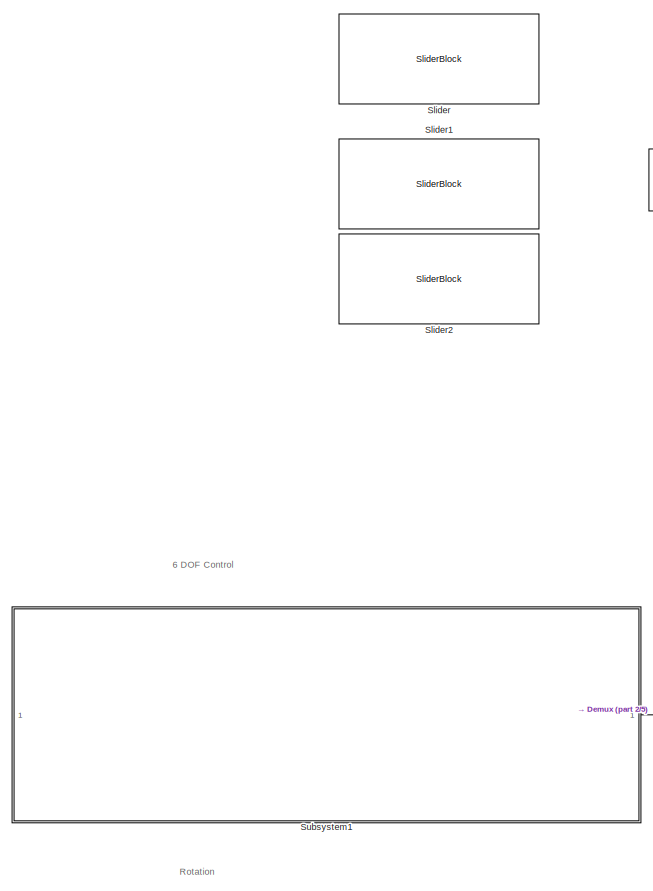
[diagram: root canvas - part 1/5, top center region]
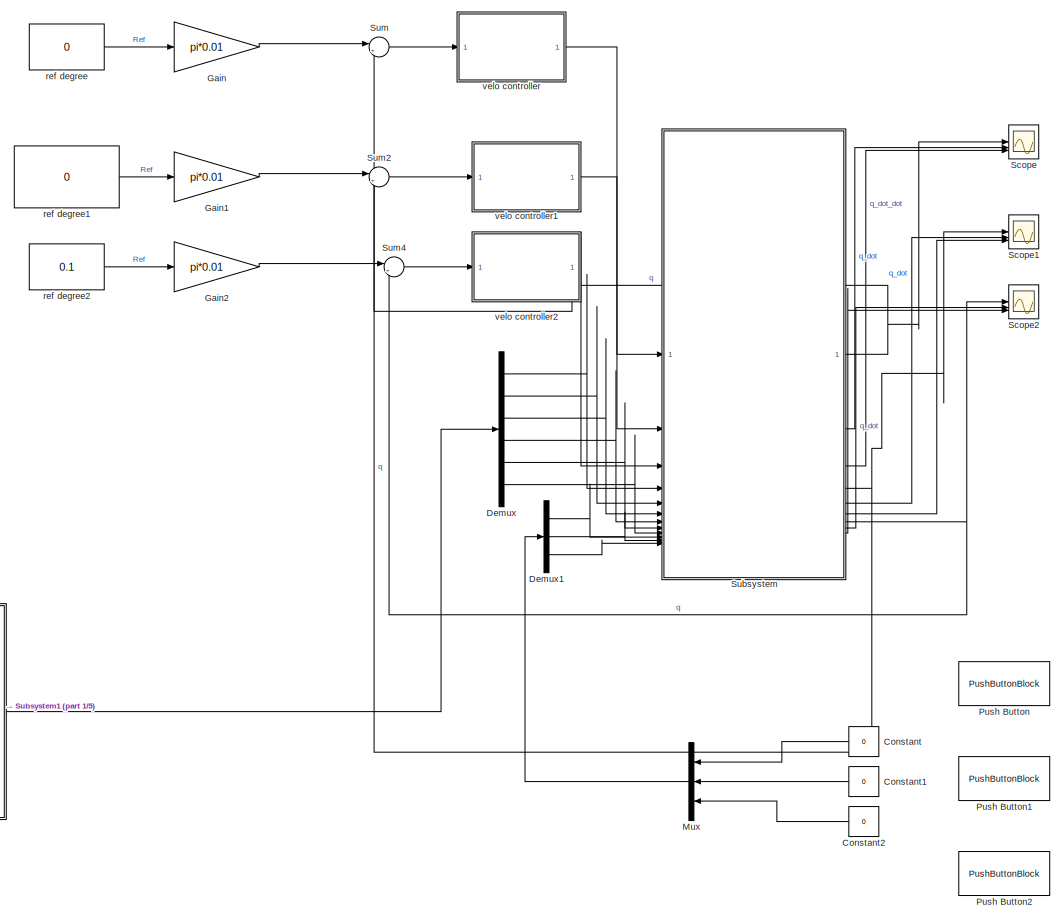
[diagram: root canvas - part 2/5, top right region]
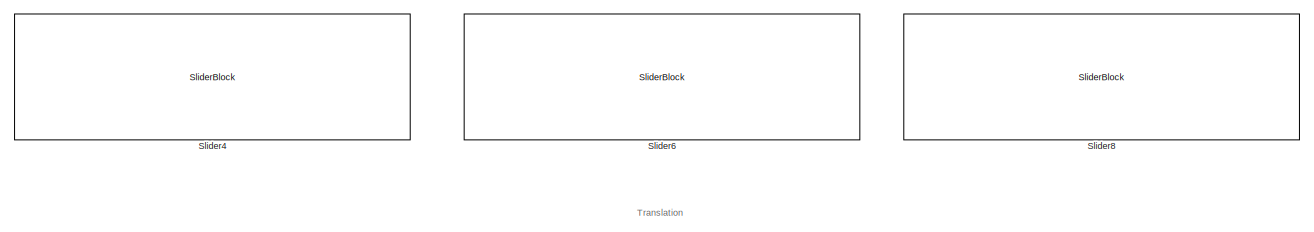
[diagram: root canvas - part 3/5, bottom center region]
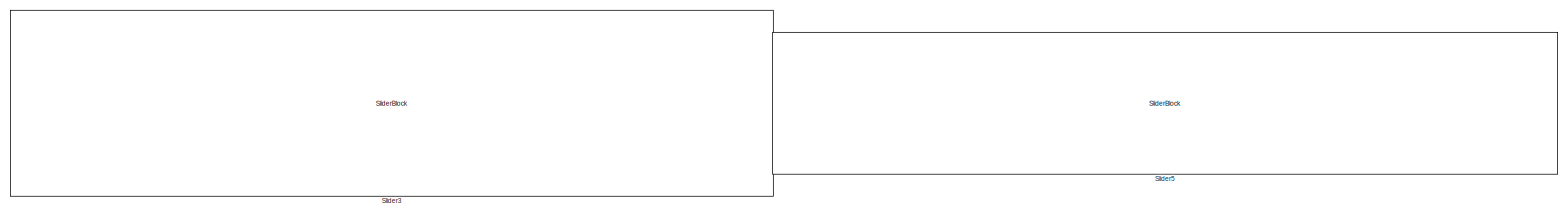
[diagram: root canvas - part 4/5, bottom left region]
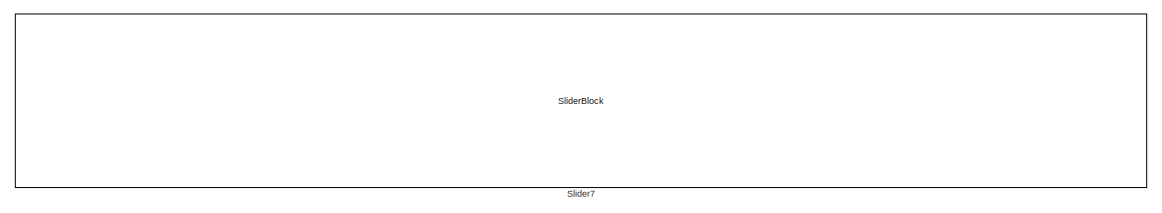
[diagram: root canvas - part 5/5, bottom right region]
MODEL slx_042c8a265674
KIND model
CONFIG AbsTol = auto
CONFIG EnableMultiTasking = off
CONFIG FixedStep = auto
CONFIG MaxStep = auto
CONFIG MinStep = auto
CONFIG RelTol = 1e-3
CONFIG SampleTimeConstraint = Unconstrained
CONFIG SolverName = VariableStepAuto
CONFIG StartTime = 0.0
CONFIG StopTime = inf
BLOCK [Constant] Constant
  NameLocation = top
  Value = 0
BLOCK [Constant] Constant1
  NameLocation = top
  Value = 0
BLOCK [Constant] Constant2
  NameLocation = top
  Value = 0
BLOCK [Demux] Demux
  Outputs = 6
BLOCK [Demux] Demux1
  Outputs = 3
BLOCK [Gain] Gain
  Gain = pi*0.01
BLOCK [Gain] Gain1
  Gain = pi*0.01
BLOCK [Gain] Gain2
  Gain = pi*0.01
BLOCK [Mux] Mux
  DisplayOption = bar
  Inputs = 3
  NameLocation = top
BLOCK [PushButtonBlock] Push Button
  OffValue = 0.000000
  OnValue = 10
BLOCK [PushButtonBlock] Push Button1
  OffValue = 0.000000
  OnValue = 10
BLOCK [PushButtonBlock] Push Button2
  OffValue = 0.000000
  OnValue = 10
BLOCK [Scope] Scope
  Floating = off
  NumInputPorts = 3
  ScopeSpecificationString = Simulink.scopes.TimeScopeBlockCfg('CurrentConfiguration', extmgr.ConfigurationSet(extmgr.Configuration('Core','General UI',true),extmgr.Configuration('Core','Source UI',true),extmgr.Configuration('Sources','WiredSimulink',true),extmgr.Configuration('Visuals','Time Domain',true,'SerializedDisplays',{struct('MinYLimReal','-0.86068','MaxYLimReal','0.10735','YLabelReal','','MinYLimMag','0.00000','MaxY...<+1530ch>
BLOCK [Scope] Scope1
  Floating = off
  NumInputPorts = 3
  ScopeSpecificationString = Simulink.scopes.TimeScopeBlockCfg('CurrentConfiguration', extmgr.ConfigurationSet(extmgr.Configuration('Core','General UI',true),extmgr.Configuration('Core','Source UI',true),extmgr.Configuration('Sources','WiredSimulink',true,'DataLoggingVariableName','ScopeData1'),extmgr.Configuration('Visuals','Time Domain',true,'SerializedDisplays',{struct('MinYLimReal','-29580.86741','MaxYLimReal','265861.364...<+1414ch>
BLOCK [Scope] Scope2
  Floating = off
  NumInputPorts = 3
  ScopeSpecificationString = Simulink.scopes.TimeScopeBlockCfg('CurrentConfiguration', extmgr.ConfigurationSet(extmgr.Configuration('Core','General UI',true),extmgr.Configuration('Core','Source UI',true),extmgr.Configuration('Sources','WiredSimulink',true,'DataLoggingVariableName','ScopeData2'),extmgr.Configuration('Visuals','Time Domain',true,'SerializedDisplays',{struct('MinYLimReal','-29580.86741','MaxYLimReal','265861.364...<+1414ch>
BLOCK [SliderBlock] Slider
  TickInterval = 10
BLOCK [SliderBlock] Slider1
  TickInterval = 10
BLOCK [SliderBlock] Slider2
  ScaleMin = .1
  TickInterval = 10
BLOCK [SliderBlock] Slider3
  ScaleMax = 1
  ScaleMin = -1
  TickInterval = 0.1
BLOCK [SliderBlock] Slider4
  ScaleMin = -100
  TickInterval = 10
BLOCK [SliderBlock] Slider5
  ScaleMax = 1
  ScaleMin = -1
  TickInterval = 0.1
BLOCK [SliderBlock] Slider6
  ScaleMin = -100
  TickInterval = 10
BLOCK [SliderBlock] Slider7
  ScaleMax = 1
  ScaleMin = -1
  TickInterval = 0.1
BLOCK [SliderBlock] Slider8
  ScaleMin = -100
  TickInterval = 10
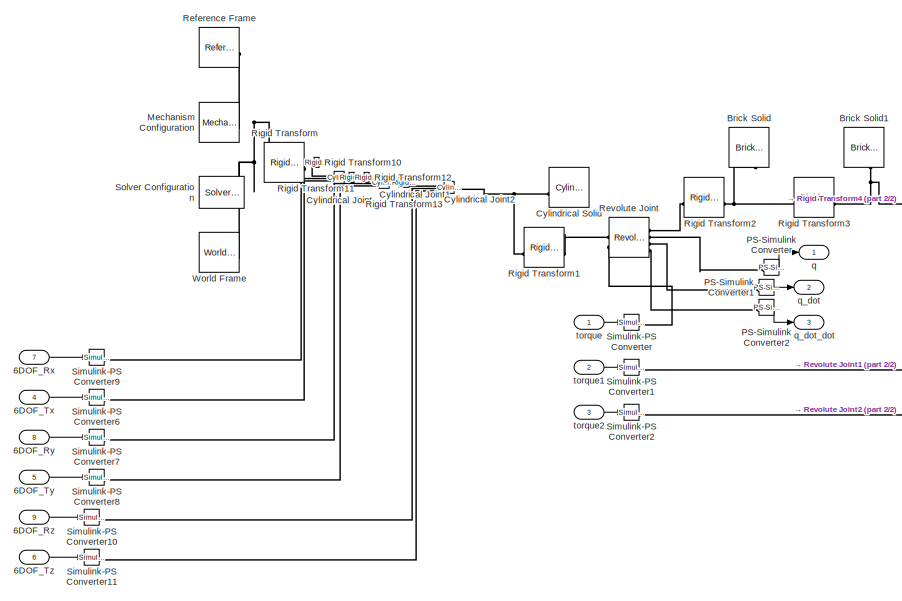
[diagram: Subsystem - part 1/2, left side, full height]
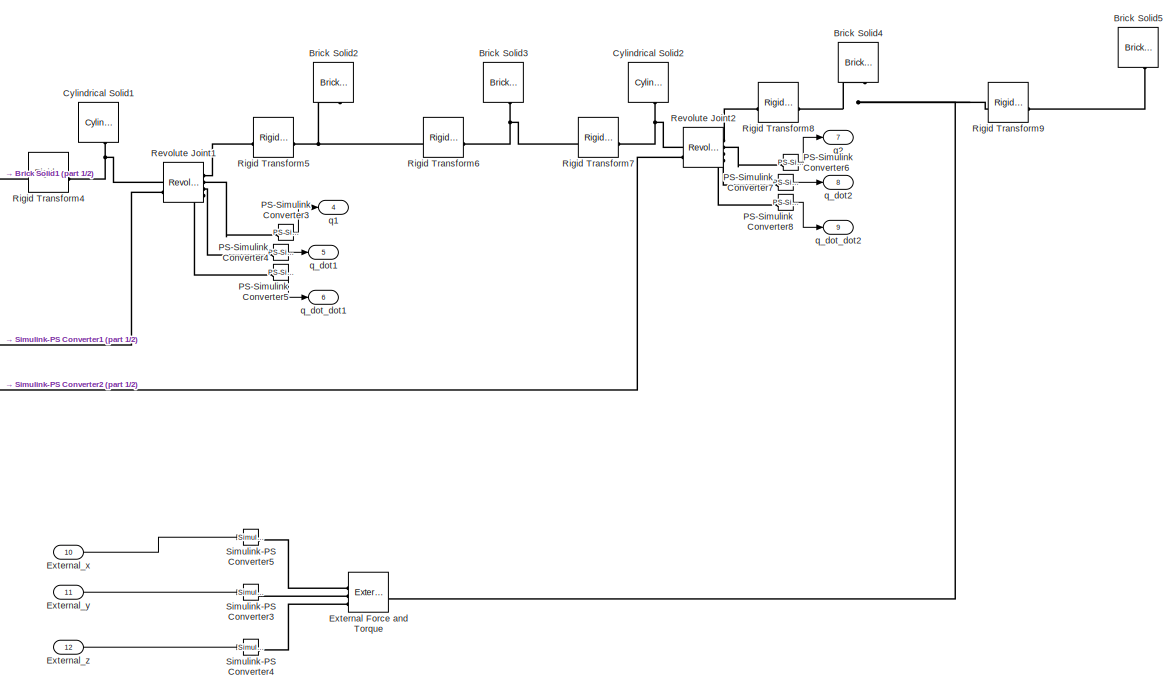
[diagram: Subsystem - part 2/2, right side, full height]
BLOCK [SubSystem] Subsystem
BLOCK [Inport] Subsystem/6DOF_Rx
  Port = 7
BLOCK [Inport] Subsystem/6DOF_Ry
  Port = 8
BLOCK [Inport] Subsystem/6DOF_Rz
  Port = 9
BLOCK [Inport] Subsystem/6DOF_Tx
  Port = 4
BLOCK [Inport] Subsystem/6DOF_Ty
  Port = 5
BLOCK [Inport] Subsystem/6DOF_Tz
  Port = 6
BLOCK [Reference] Subsystem/Brick Solid  REF=sm_lib/Body Elements/Brick Solid
  NameLocation = left
  SourceBlock = sm_lib/Body Elements/Brick Solid
  SourceType = Brick Solid
BLOCK [Reference] Subsystem/Brick Solid1  REF=sm_lib/Body Elements/Brick Solid
  NameLocation = left
  SourceBlock = sm_lib/Body Elements/Brick Solid
  SourceType = Brick Solid
BLOCK [Reference] Subsystem/Brick Solid2  REF=sm_lib/Body Elements/Brick Solid
  NameLocation = left
  SourceBlock = sm_lib/Body Elements/Brick Solid
  SourceType = Brick Solid
BLOCK [Reference] Subsystem/Brick Solid3  REF=sm_lib/Body Elements/Brick Solid
  NameLocation = left
  SourceBlock = sm_lib/Body Elements/Brick Solid
  SourceType = Brick Solid
BLOCK [Reference] Subsystem/Brick Solid4  REF=sm_lib/Body Elements/Brick Solid
  NameLocation = left
  SourceBlock = sm_lib/Body Elements/Brick Solid
  SourceType = Brick Solid
BLOCK [Reference] Subsystem/Brick Solid5  REF=sm_lib/Body Elements/Brick Solid
  NameLocation = left
  SourceBlock = sm_lib/Body Elements/Brick Solid
  SourceType = Brick Solid
BLOCK [Reference] Subsystem/Cylindrical Joint  REF=sm_lib/Joints/Cylindrical
Joint
  SourceBlock = sm_lib/Joints/Cylindrical\nJoint
  SourceType = Cylindrical\nJoint
BLOCK [Reference] Subsystem/Cylindrical Joint1  REF=sm_lib/Joints/Cylindrical
Joint
  NameLocation = right
  SourceBlock = sm_lib/Joints/Cylindrical\nJoint
  SourceType = Cylindrical\nJoint
BLOCK [Reference] Subsystem/Cylindrical Joint2  REF=sm_lib/Joints/Cylindrical
Joint
  NameLocation = right
  SourceBlock = sm_lib/Joints/Cylindrical\nJoint
  SourceType = Cylindrical\nJoint
BLOCK [Reference] Subsystem/Cylindrical Solid  REF=sm_lib/Body Elements/Cylindrical Solid
  NameLocation = top
  SourceBlock = sm_lib/Body Elements/Cylindrical Solid
  SourceType = Cylindrical Solid
BLOCK [Reference] Subsystem/Cylindrical Solid1  REF=sm_lib/Body Elements/Cylindrical Solid
  NameLocation = left
  SourceBlock = sm_lib/Body Elements/Cylindrical Solid
  SourceType = Cylindrical Solid
BLOCK [Reference] Subsystem/Cylindrical Solid2  REF=sm_lib/Body Elements/Cylindrical Solid
  NameLocation = left
  SourceBlock = sm_lib/Body Elements/Cylindrical Solid
  SourceType = Cylindrical Solid
BLOCK [Reference] Subsystem/External Force and Torque  REF=sm_lib/Forces and
Torques/External Force
and Torque
  SourceBlock = sm_lib/Forces and\nTorques/External Force\nand Torque
  SourceType = External Force\nand Torque
BLOCK [Inport] Subsystem/External_x
  Port = 10
BLOCK [Inport] Subsystem/External_y
  Port = 11
BLOCK [Inport] Subsystem/External_z
  Port = 12
BLOCK [Reference] Subsystem/Mechanism Configuration  REF=sm_lib/Utilities/Mechanism
Configuration
  SourceBlock = sm_lib/Utilities/Mechanism\nConfiguration
  SourceType = Mechanism\nConfiguration
BLOCK [Reference] Subsystem/PS-Simulink Converter  REF=nesl_utility/PS-Simulink
Converter
  SourceBlock = nesl_utility/PS-Simulink\nConverter
  SourceType = PS-Simulink\nConverter
BLOCK [Reference] Subsystem/PS-Simulink Converter1  REF=nesl_utility/PS-Simulink
Converter
  SourceBlock = nesl_utility/PS-Simulink\nConverter
  SourceType = PS-Simulink\nConverter
BLOCK [Reference] Subsystem/PS-Simulink Converter2  REF=nesl_utility/PS-Simulink
Converter
  SourceBlock = nesl_utility/PS-Simulink\nConverter
  SourceType = PS-Simulink\nConverter
BLOCK [Reference] Subsystem/PS-Simulink Converter3  REF=nesl_utility/PS-Simulink
Converter
  SourceBlock = nesl_utility/PS-Simulink\nConverter
  SourceType = PS-Simulink\nConverter
BLOCK [Reference] Subsystem/PS-Simulink Converter4  REF=nesl_utility/PS-Simulink
Converter
  SourceBlock = nesl_utility/PS-Simulink\nConverter
  SourceType = PS-Simulink\nConverter
BLOCK [Reference] Subsystem/PS-Simulink Converter5  REF=nesl_utility/PS-Simulink
Converter
  SourceBlock = nesl_utility/PS-Simulink\nConverter
  SourceType = PS-Simulink\nConverter
BLOCK [Reference] Subsystem/PS-Simulink Converter6  REF=nesl_utility/PS-Simulink
Converter
  SourceBlock = nesl_utility/PS-Simulink\nConverter
  SourceType = PS-Simulink\nConverter
BLOCK [Reference] Subsystem/PS-Simulink Converter7  REF=nesl_utility/PS-Simulink
Converter
  SourceBlock = nesl_utility/PS-Simulink\nConverter
  SourceType = PS-Simulink\nConverter
BLOCK [Reference] Subsystem/PS-Simulink Converter8  REF=nesl_utility/PS-Simulink
Converter
  SourceBlock = nesl_utility/PS-Simulink\nConverter
  SourceType = PS-Simulink\nConverter
BLOCK [Reference] Subsystem/Reference Frame  REF=sm_lib/Frames and
Transforms/Reference
Frame
  SourceBlock = sm_lib/Frames and\nTransforms/Reference\nFrame
  SourceType = Reference\nFrame
BLOCK [Reference] Subsystem/Revolute Joint  REF=sm_lib/Joints/Revolute Joint
  SourceBlock = sm_lib/Joints/Revolute Joint
  SourceType = Revolute Joint
BLOCK [Reference] Subsystem/Revolute Joint1  REF=sm_lib/Joints/Revolute Joint
  SourceBlock = sm_lib/Joints/Revolute Joint
  SourceType = Revolute Joint
BLOCK [Reference] Subsystem/Revolute Joint2  REF=sm_lib/Joints/Revolute Joint
  SourceBlock = sm_lib/Joints/Revolute Joint
  SourceType = Revolute Joint
BLOCK [Reference] Subsystem/Rigid Transform  REF=sm_lib/Frames and
Transforms/Rigid
Transform
  SourceBlock = sm_lib/Frames and\nTransforms/Rigid\nTransform
  SourceType = Rigid\nTransform
BLOCK [Reference] Subsystem/Rigid Transform1  REF=sm_lib/Frames and
Transforms/Rigid
Transform
  SourceBlock = sm_lib/Frames and\nTransforms/Rigid\nTransform
  SourceType = Rigid\nTransform
BLOCK [Reference] Subsystem/Rigid Transform10  REF=sm_lib/Frames and
Transforms/Rigid
Transform
  SourceBlock = sm_lib/Frames and\nTransforms/Rigid\nTransform
  SourceType = Rigid\nTransform
BLOCK [Reference] Subsystem/Rigid Transform11  REF=sm_lib/Frames and
Transforms/Rigid
Transform
  NameLocation = right
  SourceBlock = sm_lib/Frames and\nTransforms/Rigid\nTransform
  SourceType = Rigid\nTransform
BLOCK [Reference] Subsystem/Rigid Transform12  REF=sm_lib/Frames and
Transforms/Rigid
Transform
  SourceBlock = sm_lib/Frames and\nTransforms/Rigid\nTransform
  SourceType = Rigid\nTransform
BLOCK [Reference] Subsystem/Rigid Transform13  REF=sm_lib/Frames and
Transforms/Rigid
Transform
  NameLocation = right
  SourceBlock = sm_lib/Frames and\nTransforms/Rigid\nTransform
  SourceType = Rigid\nTransform
BLOCK [Reference] Subsystem/Rigid Transform2  REF=sm_lib/Frames and
Transforms/Rigid
Transform
  SourceBlock = sm_lib/Frames and\nTransforms/Rigid\nTransform
  SourceType = Rigid\nTransform
BLOCK [Reference] Subsystem/Rigid Transform3  REF=sm_lib/Frames and
Transforms/Rigid
Transform
  SourceBlock = sm_lib/Frames and\nTransforms/Rigid\nTransform
  SourceType = Rigid\nTransform
BLOCK [Reference] Subsystem/Rigid Transform4  REF=sm_lib/Frames and
Transforms/Rigid
Transform
  SourceBlock = sm_lib/Frames and\nTransforms/Rigid\nTransform
  SourceType = Rigid\nTransform
BLOCK [Reference] Subsystem/Rigid Transform5  REF=sm_lib/Frames and
Transforms/Rigid
Transform
  SourceBlock = sm_lib/Frames and\nTransforms/Rigid\nTransform
  SourceType = Rigid\nTransform
BLOCK [Reference] Subsystem/Rigid Transform6  REF=sm_lib/Frames and
Transforms/Rigid
Transform
  SourceBlock = sm_lib/Frames and\nTransforms/Rigid\nTransform
  SourceType = Rigid\nTransform
BLOCK [Reference] Subsystem/Rigid Transform7  REF=sm_lib/Frames and
Transforms/Rigid
Transform
  SourceBlock = sm_lib/Frames and\nTransforms/Rigid\nTransform
  SourceType = Rigid\nTransform
BLOCK [Reference] Subsystem/Rigid Transform8  REF=sm_lib/Frames and
Transforms/Rigid
Transform
  SourceBlock = sm_lib/Frames and\nTransforms/Rigid\nTransform
  SourceType = Rigid\nTransform
BLOCK [Reference] Subsystem/Rigid Transform9  REF=sm_lib/Frames and
Transforms/Rigid
Transform
  SourceBlock = sm_lib/Frames and\nTransforms/Rigid\nTransform
  SourceType = Rigid\nTransform
BLOCK [Reference] Subsystem/Simulink-PS Converter  REF=nesl_utility/Simulink-PS
Converter
  SourceBlock = nesl_utility/Simulink-PS\nConverter
  SourceType = Simulink-PS\nConverter
BLOCK [Reference] Subsystem/Simulink-PS Converter1  REF=nesl_utility/Simulink-PS
Converter
  SourceBlock = nesl_utility/Simulink-PS\nConverter
  SourceType = Simulink-PS\nConverter
BLOCK [Reference] Subsystem/Simulink-PS Converter10  REF=nesl_utility/Simulink-PS
Converter
  SourceBlock = nesl_utility/Simulink-PS\nConverter
  SourceType = Simulink-PS\nConverter
BLOCK [Reference] Subsystem/Simulink-PS Converter11  REF=nesl_utility/Simulink-PS
Converter
  SourceBlock = nesl_utility/Simulink-PS\nConverter
  SourceType = Simulink-PS\nConverter
BLOCK [Reference] Subsystem/Simulink-PS Converter2  REF=nesl_utility/Simulink-PS
Converter
  SourceBlock = nesl_utility/Simulink-PS\nConverter
  SourceType = Simulink-PS\nConverter
BLOCK [Reference] Subsystem/Simulink-PS Converter3  REF=nesl_utility/Simulink-PS
Converter
  SourceBlock = nesl_utility/Simulink-PS\nConverter
  SourceType = Simulink-PS\nConverter
BLOCK [Reference] Subsystem/Simulink-PS Converter4  REF=nesl_utility/Simulink-PS
Converter
  SourceBlock = nesl_utility/Simulink-PS\nConverter
  SourceType = Simulink-PS\nConverter
BLOCK [Reference] Subsystem/Simulink-PS Converter5  REF=nesl_utility/Simulink-PS
Converter
  SourceBlock = nesl_utility/Simulink-PS\nConverter
  SourceType = Simulink-PS\nConverter
BLOCK [Reference] Subsystem/Simulink-PS Converter6  REF=nesl_utility/Simulink-PS
Converter
  SourceBlock = nesl_utility/Simulink-PS\nConverter
  SourceType = Simulink-PS\nConverter
BLOCK [Reference] Subsystem/Simulink-PS Converter7  REF=nesl_utility/Simulink-PS
Converter
  SourceBlock = nesl_utility/Simulink-PS\nConverter
  SourceType = Simulink-PS\nConverter
BLOCK [Reference] Subsystem/Simulink-PS Converter8  REF=nesl_utility/Simulink-PS
Converter
  SourceBlock = nesl_utility/Simulink-PS\nConverter
  SourceType = Simulink-PS\nConverter
BLOCK [Reference] Subsystem/Simulink-PS Converter9  REF=nesl_utility/Simulink-PS
Converter
  SourceBlock = nesl_utility/Simulink-PS\nConverter
  SourceType = Simulink-PS\nConverter
BLOCK [Reference] Subsystem/Solver Configuration  REF=nesl_utility/Solver
Configuration
  SourceBlock = nesl_utility/Solver\nConfiguration
  SourceType = Solver\nConfiguration
BLOCK [Reference] Subsystem/World Frame  REF=sm_lib/Frames and
Transforms/World Frame
  SourceBlock = sm_lib/Frames and\nTransforms/World Frame
  SourceType = World Frame
BLOCK [Outport] Subsystem/q
BLOCK [Outport] Subsystem/q1
  Port = 4
BLOCK [Outport] Subsystem/q2
  Port = 7
BLOCK [Outport] Subsystem/q_dot
  Port = 2
BLOCK [Outport] Subsystem/q_dot1
  Port = 5
BLOCK [Outport] Subsystem/q_dot2
  Port = 8
BLOCK [Outport] Subsystem/q_dot_dot
  Port = 3
BLOCK [Outport] Subsystem/q_dot_dot1
  Port = 6
BLOCK [Outport] Subsystem/q_dot_dot2
  Port = 9
BLOCK [Inport] Subsystem/torque
BLOCK [Inport] Subsystem/torque1
  Port = 2
BLOCK [Inport] Subsystem/torque2
  Port = 3
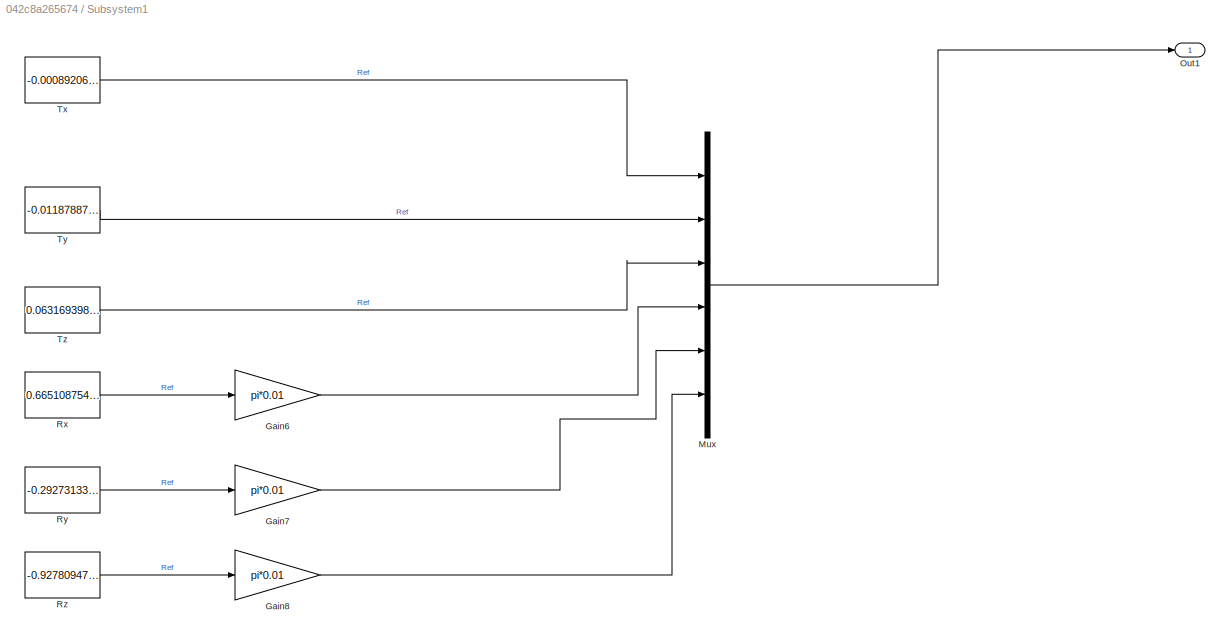
BLOCK [SubSystem] Subsystem1
BLOCK [Gain] Subsystem1/Gain6
  Gain = pi*0.01
BLOCK [Gain] Subsystem1/Gain7
  Gain = pi*0.01
BLOCK [Gain] Subsystem1/Gain8
  Gain = pi*0.01
BLOCK [Mux] Subsystem1/Mux
  DisplayOption = bar
  Inputs = 6
BLOCK [Outport] Subsystem1/Out1
BLOCK [Constant] Subsystem1/Rx
  OutDataTypeStr = double
  Value = 0.6651087542692835
BLOCK [Constant] Subsystem1/Ry
  OutDataTypeStr = double
  Value = -0.2927313321756486
BLOCK [Constant] Subsystem1/Rz
  OutDataTypeStr = double
  Value = -0.9278094765566891
BLOCK [Constant] Subsystem1/Tx
  OutDataTypeStr = double
  Value = -0.000892060660124927
BLOCK [Constant] Subsystem1/Ty
  OutDataTypeStr = double
  Value = -0.01187887954122946
BLOCK [Constant] Subsystem1/Tz
  OutDataTypeStr = double
  Value = 0.06316939890710382
BLOCK [Sum] Sum
  Inputs = |+-
BLOCK [Sum] Sum2
  Inputs = |+-
BLOCK [Sum] Sum4
  Inputs = |+-
BLOCK [Constant] ref degree
  OutDataTypeStr = int32
  Value = 0
BLOCK [Constant] ref degree1
  OutDataTypeStr = int32
  Value = 0
BLOCK [Constant] ref degree2
  OutDataTypeStr = int32
  Value = 0.1
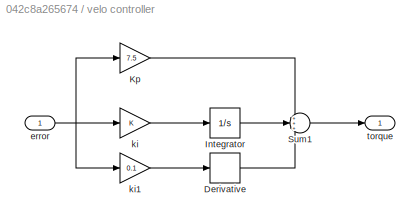
BLOCK [SubSystem] velo controller
BLOCK [Derivative] velo controller/Derivative
BLOCK [Integrator] velo controller/Integrator
BLOCK [Gain] velo controller/Kp
  Gain = 7.5
BLOCK [Sum] velo controller/Sum1
  Inputs = +++
BLOCK [Inport] velo controller/error
BLOCK [Gain] velo controller/ki
BLOCK [Gain] velo controller/ki1
  Gain = 0.1
BLOCK [Outport] velo controller/torque
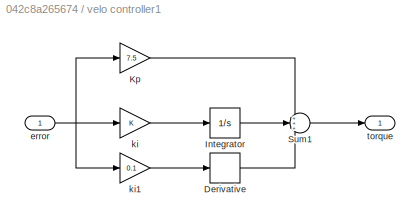
BLOCK [SubSystem] velo controller1
BLOCK [Derivative] velo controller1/Derivative
BLOCK [Integrator] velo controller1/Integrator
BLOCK [Gain] velo controller1/Kp
  Gain = 7.5
BLOCK [Sum] velo controller1/Sum1
  Inputs = +++
BLOCK [Inport] velo controller1/error
BLOCK [Gain] velo controller1/ki
BLOCK [Gain] velo controller1/ki1
  Gain = 0.1
BLOCK [Outport] velo controller1/torque
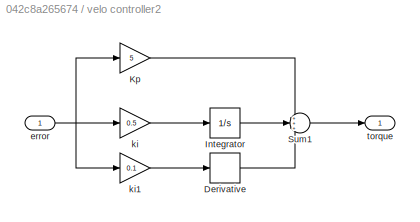
BLOCK [SubSystem] velo controller2
BLOCK [Derivative] velo controller2/Derivative
BLOCK [Integrator] velo controller2/Integrator
BLOCK [Gain] velo controller2/Kp
  Gain = 5
BLOCK [Sum] velo controller2/Sum1
  Inputs = +++
BLOCK [Inport] velo controller2/error
BLOCK [Gain] velo controller2/ki
  Gain = 0.5
BLOCK [Gain] velo controller2/ki1
  Gain = 0.1
BLOCK [Outport] velo controller2/torque
ANNOTATION (root): 6 DOF Control
ANNOTATION (root): Rotation
ANNOTATION (root): Translation
LINE Constant1:1 -> Mux:2
LINE Constant2:1 -> Mux:3
LINE Constant:1 -> Mux:1
LINE Demux1:1 -> Subsystem:10
LINE Demux1:2 -> Subsystem:11
LINE Demux1:3 -> Subsystem:12
LINE Demux:1 -> Subsystem:4
LINE Demux:2 -> Subsystem:5
LINE Demux:3 -> Subsystem:6
LINE Demux:4 -> Subsystem:7
LINE Demux:5 -> Subsystem:8
LINE Demux:6 -> Subsystem:9
LINE Gain1:1 -> Sum2:1
LINE Gain2:1 -> Sum4:1
LINE Gain:1 -> Sum:1
LINE Mux:1 -> Demux1:1
LINE Subsystem/6DOF_Rx:1 -> Subsystem/Simulink-PS Converter9:1
LINE Subsystem/6DOF_Ry:1 -> Subsystem/Simulink-PS Converter7:1
LINE Subsystem/6DOF_Rz:1 -> Subsystem/Simulink-PS Converter10:1
LINE Subsystem/6DOF_Tx:1 -> Subsystem/Simulink-PS Converter6:1
LINE Subsystem/6DOF_Ty:1 -> Subsystem/Simulink-PS Converter8:1
LINE Subsystem/6DOF_Tz:1 -> Subsystem/Simulink-PS Converter11:1
LINE Subsystem/External_x:1 -> Subsystem/Simulink-PS Converter5:1
LINE Subsystem/External_y:1 -> Subsystem/Simulink-PS Converter3:1
LINE Subsystem/External_z:1 -> Subsystem/Simulink-PS Converter4:1
LINE Subsystem/PS-Simulink Converter1:1 -> Subsystem/q_dot:1
LINE Subsystem/PS-Simulink Converter2:1 -> Subsystem/q_dot_dot:1
LINE Subsystem/PS-Simulink Converter3:1 -> Subsystem/q1:1
LINE Subsystem/PS-Simulink Converter4:1 -> Subsystem/q_dot1:1
LINE Subsystem/PS-Simulink Converter5:1 -> Subsystem/q_dot_dot1:1
LINE Subsystem/PS-Simulink Converter6:1 -> Subsystem/q2:1
LINE Subsystem/PS-Simulink Converter7:1 -> Subsystem/q_dot2:1
LINE Subsystem/PS-Simulink Converter8:1 -> Subsystem/q_dot_dot2:1
LINE Subsystem/PS-Simulink Converter:1 -> Subsystem/q:1
LINE Subsystem/torque1:1 -> Subsystem/Simulink-PS Converter1:1
LINE Subsystem/torque2:1 -> Subsystem/Simulink-PS Converter2:1
LINE Subsystem/torque:1 -> Subsystem/Simulink-PS Converter:1
LINE Subsystem1/Gain6:1 -> Subsystem1/Mux:4
LINE Subsystem1/Gain7:1 -> Subsystem1/Mux:5
LINE Subsystem1/Gain8:1 -> Subsystem1/Mux:6
LINE Subsystem1/Mux:1 -> Subsystem1/Out1:1
LINE Subsystem1/Rx:1 -> Subsystem1/Gain6:1
LINE Subsystem1/Ry:1 -> Subsystem1/Gain7:1
LINE Subsystem1/Rz:1 -> Subsystem1/Gain8:1
LINE Subsystem1/Tx:1 -> Subsystem1/Mux:1
LINE Subsystem1/Ty:1 -> Subsystem1/Mux:2
LINE Subsystem1/Tz:1 -> Subsystem1/Mux:3
LINE Subsystem1:1 -> Demux:1
NET Subsystem:1 -> Scope:1, Sum:2
LINE Subsystem:2 -> Scope:2
LINE Subsystem:3 -> Scope:3
NET Subsystem:4 -> Scope1:1, Sum2:2
LINE Subsystem:5 -> Scope1:2
LINE Subsystem:6 -> Scope1:3
NET Subsystem:7 -> Scope2:1, Sum4:2
LINE Subsystem:8 -> Scope2:2
LINE Subsystem:9 -> Scope2:3
LINE Sum2:1 -> velo controller1:1
LINE Sum4:1 -> velo controller2:1
LINE Sum:1 -> velo controller:1
LINE ref degree1:1 -> Gain1:1
LINE ref degree2:1 -> Gain2:1
LINE ref degree:1 -> Gain:1
LINE velo controller/Derivative:1 -> velo controller/Sum1:3
LINE velo controller/Integrator:1 -> velo controller/Sum1:2
LINE velo controller/Kp:1 -> velo controller/Sum1:1
LINE velo controller/Sum1:1 -> velo controller/torque:1
NET velo controller/error:1 -> velo controller/Kp:1, velo controller/ki1:1, velo controller/ki:1
LINE velo controller/ki1:1 -> velo controller/Derivative:1
LINE velo controller/ki:1 -> velo controller/Integrator:1
LINE velo controller1/Derivative:1 -> velo controller1/Sum1:3
LINE velo controller1/Integrator:1 -> velo controller1/Sum1:2
LINE velo controller1/Kp:1 -> velo controller1/Sum1:1
LINE velo controller1/Sum1:1 -> velo controller1/torque:1
NET velo controller1/error:1 -> velo controller1/Kp:1, velo controller1/ki1:1, velo controller1/ki:1
LINE velo controller1/ki1:1 -> velo controller1/Derivative:1
LINE velo controller1/ki:1 -> velo controller1/Integrator:1
LINE velo controller1:1 -> Subsystem:2
LINE velo controller2/Derivative:1 -> velo controller2/Sum1:3
LINE velo controller2/Integrator:1 -> velo controller2/Sum1:2
LINE velo controller2/Kp:1 -> velo controller2/Sum1:1
LINE velo controller2/Sum1:1 -> velo controller2/torque:1
NET velo controller2/error:1 -> velo controller2/Kp:1, velo controller2/ki1:1, velo controller2/ki:1
LINE velo controller2/ki1:1 -> velo controller2/Derivative:1
LINE velo controller2/ki:1 -> velo controller2/Integrator:1
LINE velo controller2:1 -> Subsystem:3
LINE velo controller:1 -> Subsystem:1
PNET net1: Subsystem/Brick Solid1:RConn1 -- Subsystem/Rigid Transform3:RConn1 -- Subsystem/Rigid Transform4:LConn1
PNET net2: Subsystem/Brick Solid2:RConn1 -- Subsystem/Rigid Transform5:RConn1 -- Subsystem/Rigid Transform6:LConn1
PNET net3: Subsystem/Brick Solid3:RConn1 -- Subsystem/Rigid Transform6:RConn1 -- Subsystem/Rigid Transform7:LConn1
PNET net4: Subsystem/Brick Solid4:RConn1 -- Subsystem/External Force and Torque:RConn1 -- Subsystem/Rigid Transform8:RConn1 -- Subsystem/Rigid Transform9:LConn1
PLINE Subsystem/Brick Solid5:RConn1 -- Subsystem/Rigid Transform9:RConn1
PNET net5: Subsystem/Brick Solid:RConn1 -- Subsystem/Rigid Transform2:RConn1 -- Subsystem/Rigid Transform3:LConn1
PLINE Subsystem/Cylindrical Joint1:LConn1 -- Subsystem/Rigid Transform12:RConn1
PLINE Subsystem/Cylindrical Joint1:LConn2 -- Subsystem/Simulink-PS Converter7:RConn1
PLINE Subsystem/Cylindrical Joint1:LConn3 -- Subsystem/Simulink-PS Converter8:RConn1
PLINE Subsystem/Cylindrical Joint1:RConn1 -- Subsystem/Rigid Transform13:LConn1
PLINE Subsystem/Cylindrical Joint2:LConn1 -- Subsystem/Rigid Transform13:RConn1
PLINE Subsystem/Cylindrical Joint2:LConn2 -- Subsystem/Simulink-PS Converter10:RConn1
PLINE Subsystem/Cylindrical Joint2:LConn3 -- Subsystem/Simulink-PS Converter11:RConn1
PNET net6: Subsystem/Cylindrical Joint2:RConn1 -- Subsystem/Cylindrical Solid:RConn1 -- Subsystem/Rigid Transform1:LConn1
PLINE Subsystem/Cylindrical Joint:LConn1 -- Subsystem/Rigid Transform10:RConn1
PLINE Subsystem/Cylindrical Joint:LConn2 -- Subsystem/Simulink-PS Converter9:RConn1
PLINE Subsystem/Cylindrical Joint:LConn3 -- Subsystem/Simulink-PS Converter6:RConn1
PLINE Subsystem/Cylindrical Joint:RConn1 -- Subsystem/Rigid Transform11:LConn1
PNET net7: Subsystem/Cylindrical Solid1:RConn1 -- Subsystem/Revolute Joint1:LConn1 -- Subsystem/Rigid Transform4:RConn1
PNET net8: Subsystem/Cylindrical Solid2:RConn1 -- Subsystem/Revolute Joint2:LConn1 -- Subsystem/Rigid Transform7:RConn1
PLINE Subsystem/External Force and Torque:LConn1 -- Subsystem/Simulink-PS Converter5:RConn1
PLINE Subsystem/External Force and Torque:LConn2 -- Subsystem/Simulink-PS Converter3:RConn1
PLINE Subsystem/External Force and Torque:LConn3 -- Subsystem/Simulink-PS Converter4:RConn1
PNET net9: Subsystem/Mechanism Configuration:RConn1 -- Subsystem/Reference Frame:RConn1 -- Subsystem/Rigid Transform:LConn1 -- Subsystem/Solver Configuration:RConn1 -- Subsystem/World Frame:RConn1
PLINE Subsystem/PS-Simulink Converter1:LConn1 -- Subsystem/Revolute Joint:RConn3
PLINE Subsystem/PS-Simulink Converter2:LConn1 -- Subsystem/Revolute Joint:RConn4
PLINE Subsystem/PS-Simulink Converter3:LConn1 -- Subsystem/Revolute Joint1:RConn2
PLINE Subsystem/PS-Simulink Converter4:LConn1 -- Subsystem/Revolute Joint1:RConn3
PLINE Subsystem/PS-Simulink Converter5:LConn1 -- Subsystem/Revolute Joint1:RConn4
PLINE Subsystem/PS-Simulink Converter6:LConn1 -- Subsystem/Revolute Joint2:RConn2
PLINE Subsystem/PS-Simulink Converter7:LConn1 -- Subsystem/Revolute Joint2:RConn3
PLINE Subsystem/PS-Simulink Converter8:LConn1 -- Subsystem/Revolute Joint2:RConn4
PLINE Subsystem/PS-Simulink Converter:LConn1 -- Subsystem/Revolute Joint:RConn2
PLINE Subsystem/Revolute Joint1:LConn2 -- Subsystem/Simulink-PS Converter1:RConn1
PLINE Subsystem/Revolute Joint1:RConn1 -- Subsystem/Rigid Transform5:LConn1
PLINE Subsystem/Revolute Joint2:LConn2 -- Subsystem/Simulink-PS Converter2:RConn1
PLINE Subsystem/Revolute Joint2:RConn1 -- Subsystem/Rigid Transform8:LConn1
PLINE Subsystem/Revolute Joint:LConn1 -- Subsystem/Rigid Transform1:RConn1
PLINE Subsystem/Revolute Joint:LConn2 -- Subsystem/Simulink-PS Converter:RConn1
PLINE Subsystem/Revolute Joint:RConn1 -- Subsystem/Rigid Transform2:LConn1
PLINE Subsystem/Rigid Transform10:LConn1 -- Subsystem/Rigid Transform:RConn1
PLINE Subsystem/Rigid Transform11:RConn1 -- Subsystem/Rigid Transform12:LConn1
note: NET lines group one-source signal fan-out (src -> all destinations, sorted); 1:1 wires keep LINE; PNET lines group multi-terminal physical nets as a canonical sorted terminal list (undirected conserving connections); 2-terminal nets keep the pairwise PLINE form
